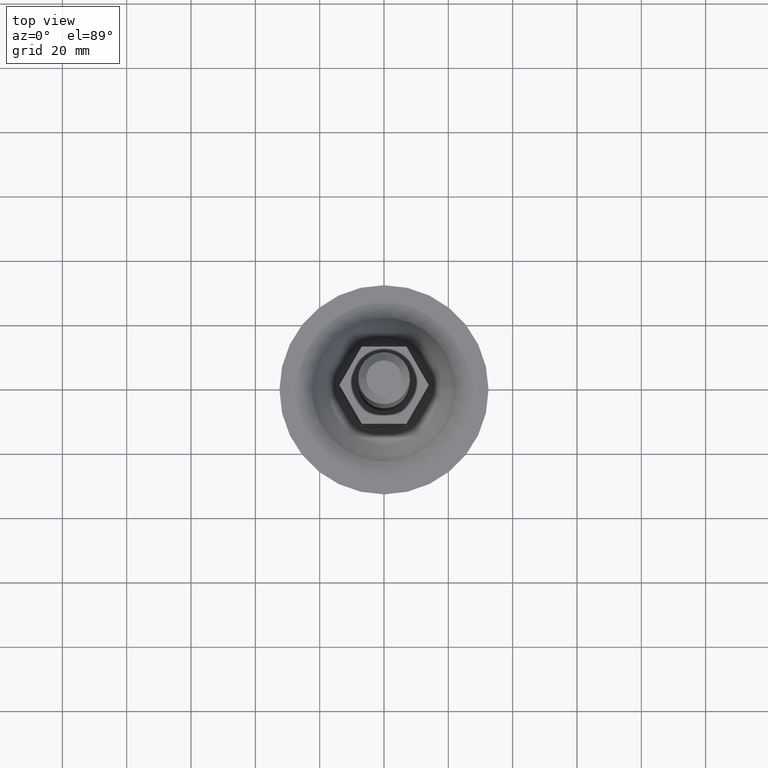
[diagram: clean part render]
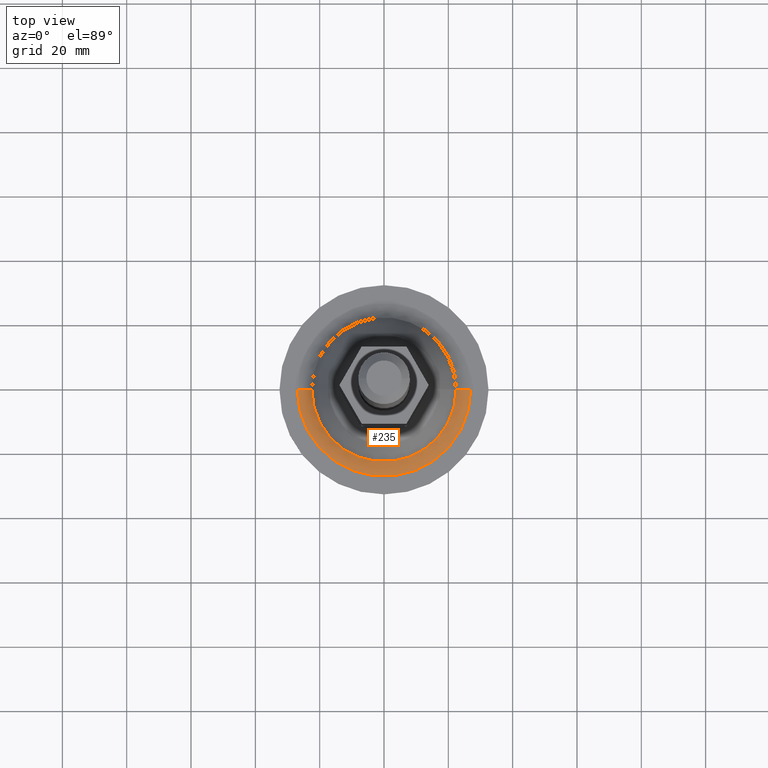
[diagram: same view with one face highlighted and labeled with its STEP entity id]
A machine part, top view. The second image highlights one B-rep face of the part: STEP entity #235.
In plain terms, the highlighted face is a freeform B-spline surface patch.
Its self-contained STEP definition (entity closure, byte-faithful):
#235=ADVANCED_FACE('',(#1112),#1111,.F.);
#1111=( BOUNDED_SURFACE() B_SPLINE_SURFACE( 2,2,((#1815,#1816,#1817,#1818,#1819),(#1820,#1821,#1822,#1823,#1824),(#1825,#1826,#1827,#1828,#1829),(#1830,#1831,#1832,#1833,#1834),(#1835,#1836,#1837,#1838,#1839)), .UNSPECIFIED.,.F.,.F.,.F.) B_SPLINE_SURFACE_WITH_KNOTS((3,2,3),(3,2,3),(0.00000000000E+00,5.00000000000E-01,1.00000000000E+00),(0.00000000000E+00,5.00000000000E-01,1.00000000000E+00), .UNSPECIFIED. ) GEOMETRIC_REPRESENTATION_ITEM() RATIONAL_B_SPLINE_SURFACE(((1.00000000000E+00,8.62734385978E-01,1.00000000000E+00,8.62734385978E-01,1.00000000000E+00),(7.07106781187E-01,6.10045334688E-01,7.07106781187E-01,6.10045334688E-01,7.07106781187E-01),(1.00000000000E+00,8.62734385978E-01,1.00000000000E+00,8.62734385978E-01,1.00000000000E+00),(7.07106781187E-01,6.10045334688E-01,7.07106781187E-01,6.10045334688E-01,7.07106781187E-01),(1.00000000000E+00,8.62734385978E-01,1.00000000000E+00,8.62734385978E-01,1.00000000000E+00))) REPRESENTATION_ITEM('') SURFACE() );
#1112=FACE_OUTER_BOUND('',#1840,.T.);
#1815=CARTESIAN_POINT('',(3.14921070067E+01,-3.85654343357E-15,-2.28408304557E+01));
#1816=CARTESIAN_POINT('',(3.00029005077E+01,-3.67417425949E-15,-2.54999999999E+01));
#1817=CARTESIAN_POINT('',(2.69551277699E+01,-3.30094207351E-15,-2.54999999999E+01));
#1818=CARTESIAN_POINT('',(2.39073550321E+01,-2.92770988754E-15,-2.54999999999E+01));
#1819=CARTESIAN_POINT('',(2.24181485331E+01,-2.74534071346E-15,-2.28408304557E+01));
#1820=CARTESIAN_POINT('',(3.14921070067E+01,-3.14921070067E+01,-2.28408304557E+01));
#1821=CARTESIAN_POINT('',(3.00029005077E+01,-3.00029005077E+01,-2.54999999999E+01));
#1822=CARTESIAN_POINT('',(2.69551277699E+01,-2.69551277699E+01,-2.54999999999E+01));
#1823=CARTESIAN_POINT('',(2.39073550321E+01,-2.39073550321E+01,-2.54999999999E+01));
#1824=CARTESIAN_POINT('',(2.24181485331E+01,-2.24181485331E+01,-2.28408304557E+01));
#1825=CARTESIAN_POINT('',(-3.19485957416E-11,-3.14921070067E+01,-2.28408304557E+01));
#1826=CARTESIAN_POINT('',(-3.19485045600E-11,-3.00029005077E+01,-2.54999999999E+01));
#1827=CARTESIAN_POINT('',(-3.19483179501E-11,-2.69551277699E+01,-2.54999999999E+01));
#1828=CARTESIAN_POINT('',(-3.19481313402E-11,-2.39073550321E+01,-2.54999999999E+01));
#1829=CARTESIAN_POINT('',(-3.19480401586E-11,-2.24181485331E+01,-2.28408304557E+01));
#1830=CARTESIAN_POINT('',(-3.14921070067E+01,-3.14921070067E+01,-2.28408304557E+01));
#1831=CARTESIAN_POINT('',(-3.00029005078E+01,-3.00029005077E+01,-2.54999999999E+01));
#1832=CARTESIAN_POINT('',(-2.69551277700E+01,-2.69551277699E+01,-2.54999999999E+01));
#1833=CARTESIAN_POINT('',(-2.39073550321E+01,-2.39073550321E+01,-2.54999999999E+01));
#1834=CARTESIAN_POINT('',(-2.24181485332E+01,-2.24181485331E+01,-2.28408304557E+01));
#1835=CARTESIAN_POINT('',(-3.14921070067E+01,-1.27370850206E-19,-2.28408304557E+01));
#1836=CARTESIAN_POINT('',(-3.00029005078E+01,-1.21347706125E-19,-2.54999999999E+01));
#1837=CARTESIAN_POINT('',(-2.69551277700E+01,-1.09020890242E-19,-2.54999999999E+01));
#1838=CARTESIAN_POINT('',(-2.39073550321E+01,-9.66940743587E-20,-2.54999999999E+01));
#1839=CARTESIAN_POINT('',(-2.24181485332E+01,-9.06709302779E-20,-2.28408304557E+01));
#1840=EDGE_LOOP('',(#2277,#2278,#2279,#2280));
#2277=ORIENTED_EDGE('',*,*,#2476,.F.);
#2278=ORIENTED_EDGE('',*,*,#2497,.T.);
#2279=ORIENTED_EDGE('',*,*,#2493,.T.);
#2280=ORIENTED_EDGE('',*,*,#2498,.F.);
#2476=EDGE_CURVE('',#3716,#3715,#3723,.T.);
#2493=EDGE_CURVE('',#3831,#3832,#3833,.T.);
#2497=EDGE_CURVE('',#3716,#3831,#3857,.T.);
#2498=EDGE_CURVE('',#3715,#3832,#3863,.T.);
#3715=VERTEX_POINT('',#4747);
#3716=VERTEX_POINT('',#4748);
#3723=CIRCLE('',#4756,2.69551277699E+01);
#3831=VERTEX_POINT('',#4817);
#3832=VERTEX_POINT('',#4818);
#3833=CIRCLE('',#4822,2.24181485331E+01);
#3857=(BOUNDED_CURVE() B_SPLINE_CURVE(2,(#4831,#4832,#4833),.UNSPECIFIED.,.F.,.F.) B_SPLINE_CURVE_WITH_KNOTS((3,3),(5.00000000000E-01,1.00000000000E+00),.UNSPECIFIED.) CURVE() GEOMETRIC_REPRESENTATION_ITEM() RATIONAL_B_SPLINE_CURVE((1.00000000000E+00,8.62734385978E-01,1.00000000000E+00)) REPRESENTATION_ITEM('') );
#3863=(BOUNDED_CURVE() B_SPLINE_CURVE(2,(#4834,#4835,#4836),.UNSPECIFIED.,.F.,.F.) B_SPLINE_CURVE_WITH_KNOTS((3,3),(5.00000229547E-01,1.00000000000E+00),.UNSPECIFIED.) CURVE() GEOMETRIC_REPRESENTATION_ITEM() RATIONAL_B_SPLINE_CURVE((7.49999905473E-01,6.47050836747E-01,7.50000000000E-01)) REPRESENTATION_ITEM('') );
#4747=CARTESIAN_POINT('',(-2.69551277700E+01,0.00000000000E+00,-2.54999999999E+01));
#4748=CARTESIAN_POINT('',(2.69551277699E+01,0.00000000000E+00,-2.54999999999E+01));
#4753=CARTESIAN_POINT('',(-3.19460013998E-11,0.00000000000E+00,-2.54999999999E+01));
#4754=DIRECTION('',(-0.00000000000E+00,0.00000000000E+00,-1.00000000000E+00));
#4755=DIRECTION('',(-1.00000000000E+00,-1.22460635382E-16,0.00000000000E+00));
#4756=AXIS2_PLACEMENT_3D('',#4753,#4754,#4755);
#4817=CARTESIAN_POINT('',(2.24181485331E+01,2.36847578587E-15,-2.28408304557E+01));
#4818=CARTESIAN_POINT('',(-2.24181485332E+01,0.00000000000E+00,-2.28408304557E+01));
#4819=CARTESIAN_POINT('',(-3.19460013998E-11,0.00000000000E+00,-2.28408304557E+01));
#4820=DIRECTION('',(-0.00000000000E+00,0.00000000000E+00,-1.00000000000E+00));
#4821=DIRECTION('',(-1.00000000000E+00,-1.22460635382E-16,0.00000000000E+00));
#4822=AXIS2_PLACEMENT_3D('',#4819,#4820,#4821);
#4831=CARTESIAN_POINT('',(2.69551277699E+01,-3.30094207351E-15,-2.54999999999E+01));
#4832=CARTESIAN_POINT('',(2.39073550321E+01,-2.92770988754E-15,-2.54999999999E+01));
#4833=CARTESIAN_POINT('',(2.24181485331E+01,-2.74534071346E-15,-2.28408304557E+01));
#4834=CARTESIAN_POINT('',(-2.69551253557E+01,3.55271303921E-15,-2.54999999999E+01));
#4835=CARTESIAN_POINT('',(-2.39073542397E+01,2.74531263777E-15,-2.54999985848E+01));
#4836=CARTESIAN_POINT('',(-2.24181485332E+01,2.36847578587E-15,-2.28408304557E+01));